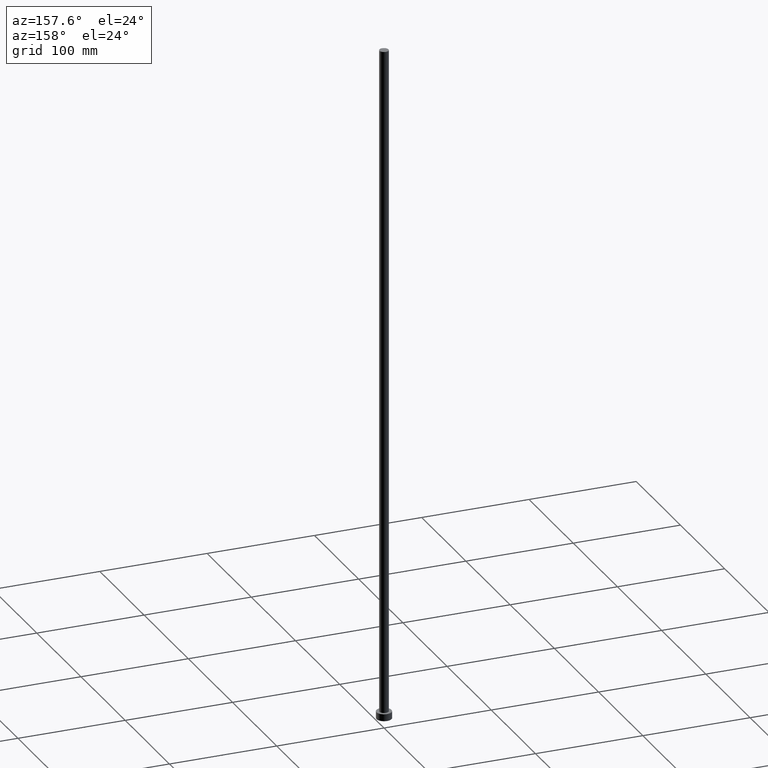
[diagram: clean part render]
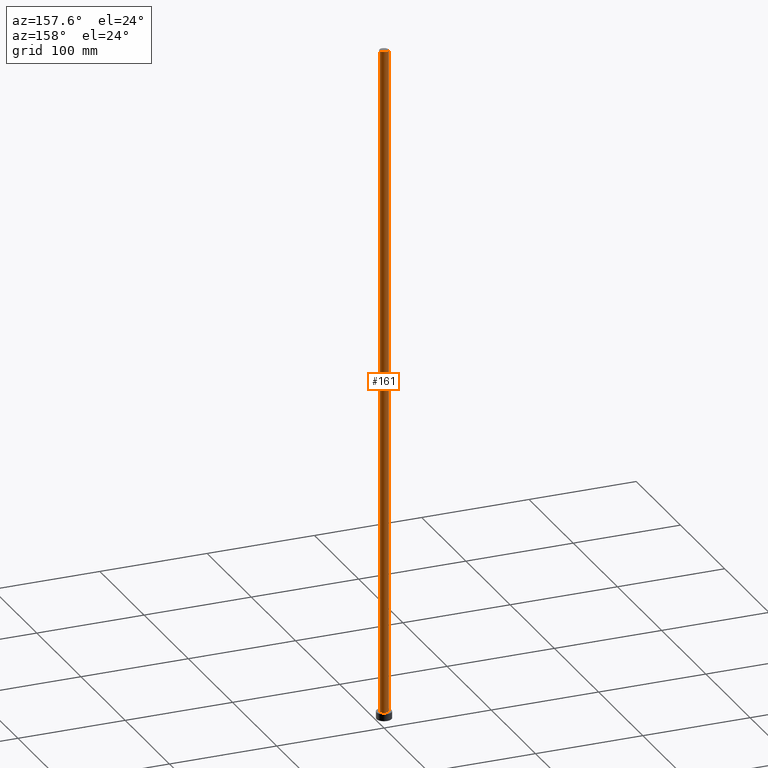
[diagram: same view with one face highlighted and labeled with its STEP entity id]
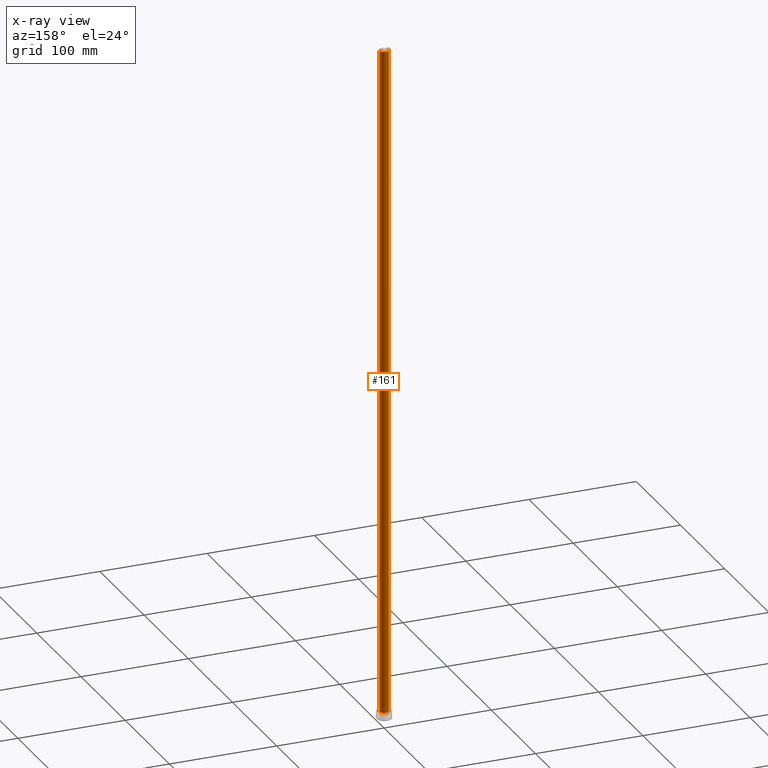
[diagram: x-ray of the same camera — body ghosted, the highlighted face saturated]
A machine part, auxiliary view. The second image highlights one B-rep face of the part: STEP entity #161.
The next image is the same camera in x-ray: the body ghosted, the highlighted face saturated — about 0% of this face is hidden behind the body in this view.
In plain terms, the highlighted cylindrical surface (edge-blend (fillet) strip) has radius 4.25 mm, axis along (-0, -0, -1).
Its self-contained STEP definition (entity closure, byte-faithful):
#8 = EDGE_LOOP ( 'NONE', ( #168, #199, #206, #209 ) ) ;
#14 = CARTESIAN_POINT ( 'NONE',  ( 4.250000000000000000, 5.204748896376249713E-16, 630.0000000000000000 ) ) ;
#19 = CIRCLE ( 'NONE', #167, 4.250000000000000000 ) ;
#29 = DIRECTION ( 'NONE',  ( -0.000000000000000000, -0.000000000000000000, -1.000000000000000000 ) ) ;
#31 = CARTESIAN_POINT ( 'NONE',  ( -4.250000000000000000, 0.000000000000000000, 630.0000000000000000 ) ) ;
#34 = CARTESIAN_POINT ( 'NONE',  ( 0.000000000000000000, 0.000000000000000000, 630.0000000000000000 ) ) ;
#54 = DIRECTION ( 'NONE',  ( 0.000000000000000000, 0.000000000000000000, 1.000000000000000000 ) ) ;
#71 = DIRECTION ( 'NONE',  ( -0.000000000000000000, -0.000000000000000000, -1.000000000000000000 ) ) ;
#87 = VECTOR ( 'NONE', #71, 1000.000000000000000 ) ;
#90 = DIRECTION ( 'NONE',  ( 0.000000000000000000, 0.000000000000000000, 1.000000000000000000 ) ) ;
#94 = LINE ( 'NONE', #156, #225 ) ;
#98 = VERTEX_POINT ( 'NONE', #222 ) ;
#105 = LINE ( 'NONE', #31, #87 ) ;
#114 = CARTESIAN_POINT ( 'NONE',  ( 0.000000000000000000, 0.000000000000000000, 6.500000000000000000 ) ) ;
#115 = DIRECTION ( 'NONE',  ( 1.000000000000000000, 0.000000000000000000, 0.000000000000000000 ) ) ;
#130 = EDGE_CURVE ( 'NONE', #98, #223, #105, .T. ) ;
#148 = EDGE_CURVE ( 'NONE', #149, #223, #19, .T. ) ;
#149 = VERTEX_POINT ( 'NONE', #217 ) ;
#154 = DIRECTION ( 'NONE',  ( 1.000000000000000000, 0.000000000000000000, 0.000000000000000000 ) ) ;
#156 = CARTESIAN_POINT ( 'NONE',  ( 4.250000000000000000, 5.204748896376249713E-16, 630.0000000000000000 ) ) ;
#161 = ADVANCED_FACE ( 'NONE', ( #249 ), #248, .T. ) ;
#167 = AXIS2_PLACEMENT_3D ( 'NONE', #114, #54, #115 ) ;
#168 = ORIENTED_EDGE ( 'NONE', *, *, #236, .F. ) ;
#171 = VERTEX_POINT ( 'NONE', #14 ) ;
#175 = CARTESIAN_POINT ( 'NONE',  ( 0.000000000000000000, 0.000000000000000000, 630.0000000000000000 ) ) ;
#176 = DIRECTION ( 'NONE',  ( -0.000000000000000000, -0.000000000000000000, -1.000000000000000000 ) ) ;
#196 = EDGE_CURVE ( 'NONE', #171, #149, #94, .T. ) ;
#199 = ORIENTED_EDGE ( 'NONE', *, *, #196, .T. ) ;
#206 = ORIENTED_EDGE ( 'NONE', *, *, #148, .T. ) ;
#208 = AXIS2_PLACEMENT_3D ( 'NONE', #34, #29, #216 ) ;
#209 = ORIENTED_EDGE ( 'NONE', *, *, #130, .F. ) ;
#211 = CARTESIAN_POINT ( 'NONE',  ( -4.250000000000000000, 0.000000000000000000, 6.500000000000000000 ) ) ;
#216 = DIRECTION ( 'NONE',  ( -1.000000000000000000, 0.000000000000000000, 0.000000000000000000 ) ) ;
#217 = CARTESIAN_POINT ( 'NONE',  ( 4.250000000000000000, 5.204748896376249713E-16, 6.500000000000000000 ) ) ;
#222 = CARTESIAN_POINT ( 'NONE',  ( -4.250000000000000000, 0.000000000000000000, 630.0000000000000000 ) ) ;
#223 = VERTEX_POINT ( 'NONE', #211 ) ;
#224 = AXIS2_PLACEMENT_3D ( 'NONE', #175, #90, #154 ) ;
#225 = VECTOR ( 'NONE', #176, 1000.000000000000000 ) ;
#236 = EDGE_CURVE ( 'NONE', #171, #98, #239, .T. ) ;
#239 = CIRCLE ( 'NONE', #224, 4.250000000000000000 ) ;
#248 = CYLINDRICAL_SURFACE ( 'NONE', #208, 4.250000000000000000 ) ;
#249 = FACE_OUTER_BOUND ( 'NONE', #8, .T. ) ;